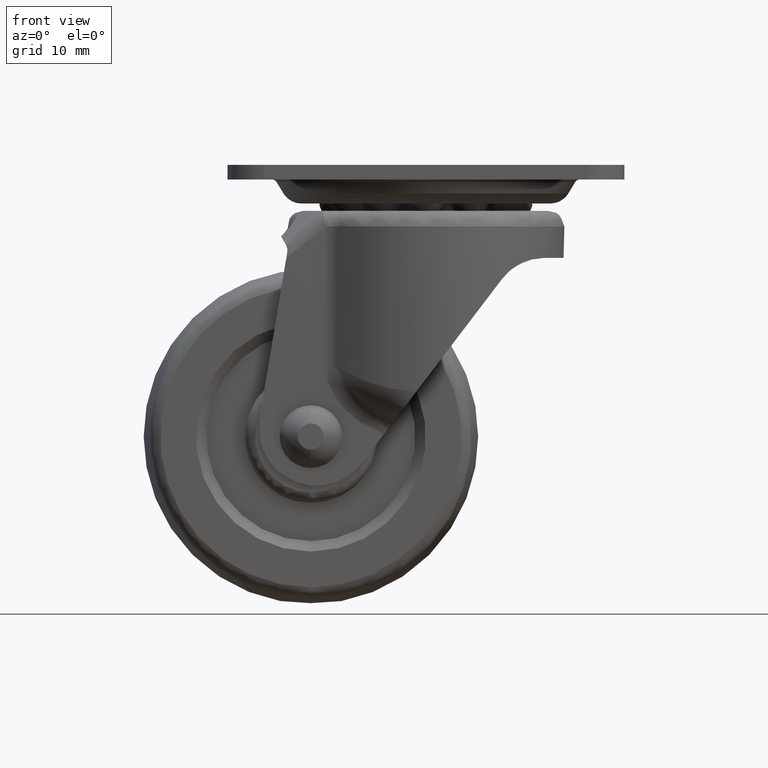
[diagram: clean part render]
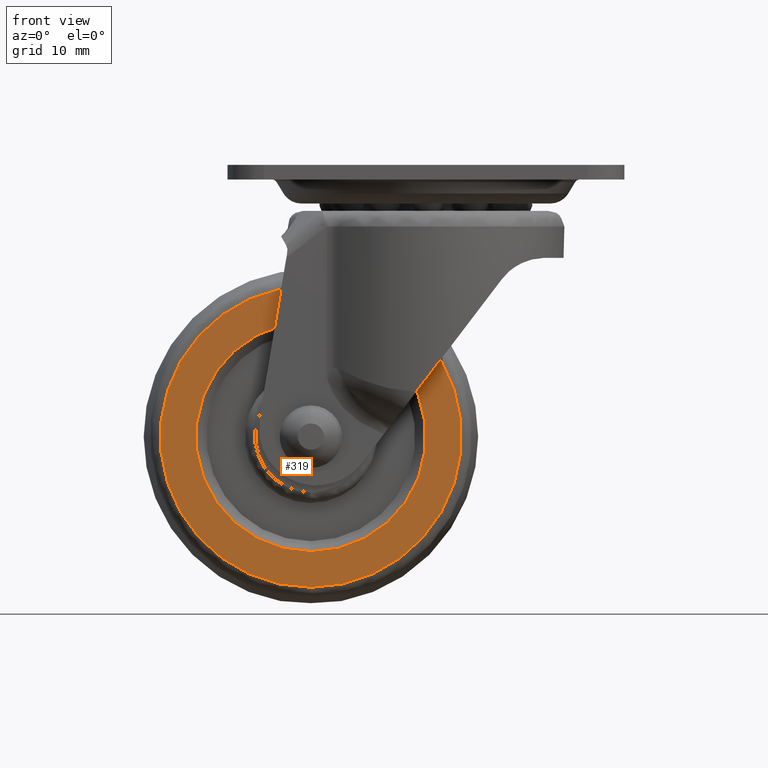
[diagram: same view with one face highlighted and labeled with its STEP entity id]
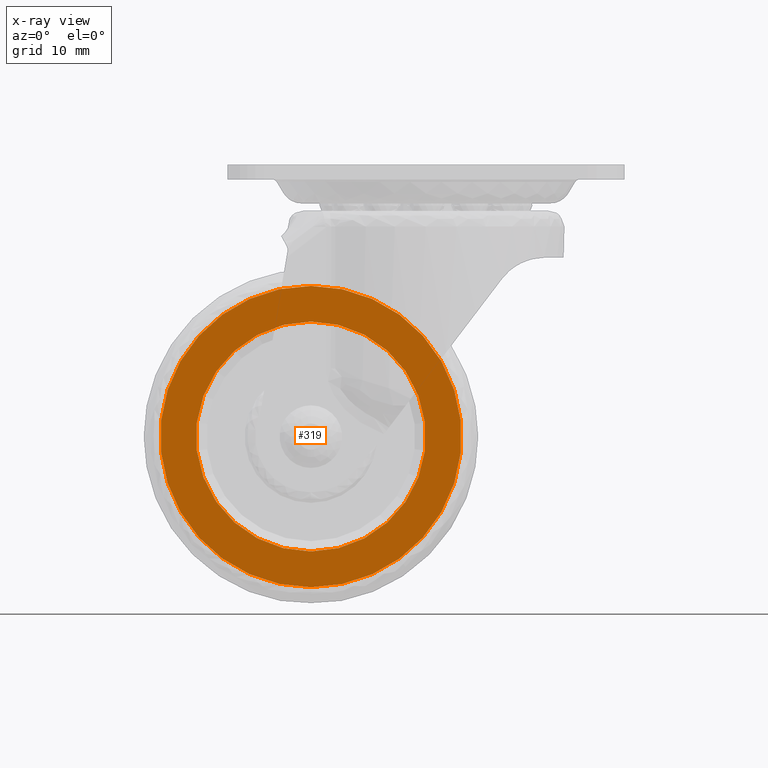
[diagram: x-ray of the same camera — body ghosted, the highlighted face saturated]
A machine part, front view. The second image highlights one B-rep face of the part: STEP entity #319.
The next image is the same camera in x-ray: the body ghosted, the highlighted face saturated — about 0% of this face is hidden behind the body in this view.
In plain terms, the highlighted planar face has unit normal (0, 1, 0).
Its self-contained STEP definition (entity closure, byte-faithful):
#319=ADVANCED_FACE('',(#1444,#1445),#1443,.F.);
#1443=PLANE('',#4157);
#1444=FACE_OUTER_BOUND('',#4158,.T.);
#1445=FACE_BOUND('',#4159,.T.);
#4154=CARTESIAN_POINT('',(-4.09585411707E+01,-7.00000000000E+00,-4.47379527936E+01));
#4155=DIRECTION('',(0.00000000000E+00,1.00000000000E+00,0.00000000000E+00));
#4156=DIRECTION('',(0.00000000000E+00,0.00000000000E+00,1.00000000000E+00));
#4157=AXIS2_PLACEMENT_3D('',#4154,#4155,#4156);
#4158=EDGE_LOOP('',(#5969,#5970));
#4159=EDGE_LOOP('',(#5971,#5972));
#5969=ORIENTED_EDGE('',*,*,#6919,.T.);
#5970=ORIENTED_EDGE('',*,*,#6920,.T.);
#5971=ORIENTED_EDGE('',*,*,#6921,.F.);
#5972=ORIENTED_EDGE('',*,*,#6922,.F.);
#6919=EDGE_CURVE('',#9027,#9028,#9029,.T.);
#6920=EDGE_CURVE('',#9028,#9027,#9035,.T.);
#6921=EDGE_CURVE('',#9041,#9042,#9043,.T.);
#6922=EDGE_CURVE('',#9042,#9041,#9049,.T.);
#9027=VERTEX_POINT('',#12758);
#9028=VERTEX_POINT('',#12759);
#9029=CIRCLE('',#12763,1.44138098412E+01);
#9035=CIRCLE('',#12767,1.44138098412E+01);
#9041=VERTEX_POINT('',#12768);
#9042=VERTEX_POINT('',#12769);
#9043=CIRCLE('',#12773,1.10000000000E+01);
#9049=CIRCLE('',#12777,1.10000000000E+01);
#12758=CARTESIAN_POINT('',(-1.10000000000E+01,-7.00000000000E+00,-4.04138098412E+01));
#12759=CARTESIAN_POINT('',(-1.10000000000E+01,-7.00000000000E+00,-1.15861901588E+01));
#12760=CARTESIAN_POINT('',(-1.10000000000E+01,-7.00000000000E+00,-2.60000000000E+01));
#12761=DIRECTION('',(0.00000000000E+00,-1.00000000000E+00,-0.00000000000E+00));
#12762=DIRECTION('',(-1.22460635382E-16,0.00000000000E+00,-1.00000000000E+00));
#12763=AXIS2_PLACEMENT_3D('',#12760,#12761,#12762);
#12764=CARTESIAN_POINT('',(-1.10000000000E+01,-7.00000000000E+00,-2.60000000000E+01));
#12765=DIRECTION('',(0.00000000000E+00,-1.00000000000E+00,-0.00000000000E+00));
#12766=DIRECTION('',(-1.22460635382E-16,0.00000000000E+00,-1.00000000000E+00));
#12767=AXIS2_PLACEMENT_3D('',#12764,#12765,#12766);
#12768=CARTESIAN_POINT('',(-1.10000000000E+01,-7.00000000000E+00,-1.50000000000E+01));
#12769=CARTESIAN_POINT('',(-1.10000000000E+01,-7.00000000000E+00,-3.70000000000E+01));
#12770=CARTESIAN_POINT('',(-1.10000000000E+01,-7.00000000000E+00,-2.60000000000E+01));
#12771=DIRECTION('',(0.00000000000E+00,-1.00000000000E+00,-0.00000000000E+00));
#12772=DIRECTION('',(-1.22460635382E-16,0.00000000000E+00,-1.00000000000E+00));
#12773=AXIS2_PLACEMENT_3D('',#12770,#12771,#12772);
#12774=CARTESIAN_POINT('',(-1.10000000000E+01,-7.00000000000E+00,-2.60000000000E+01));
#12775=DIRECTION('',(0.00000000000E+00,-1.00000000000E+00,-0.00000000000E+00));
#12776=DIRECTION('',(-1.22460635382E-16,0.00000000000E+00,-1.00000000000E+00));
#12777=AXIS2_PLACEMENT_3D('',#12774,#12775,#12776);